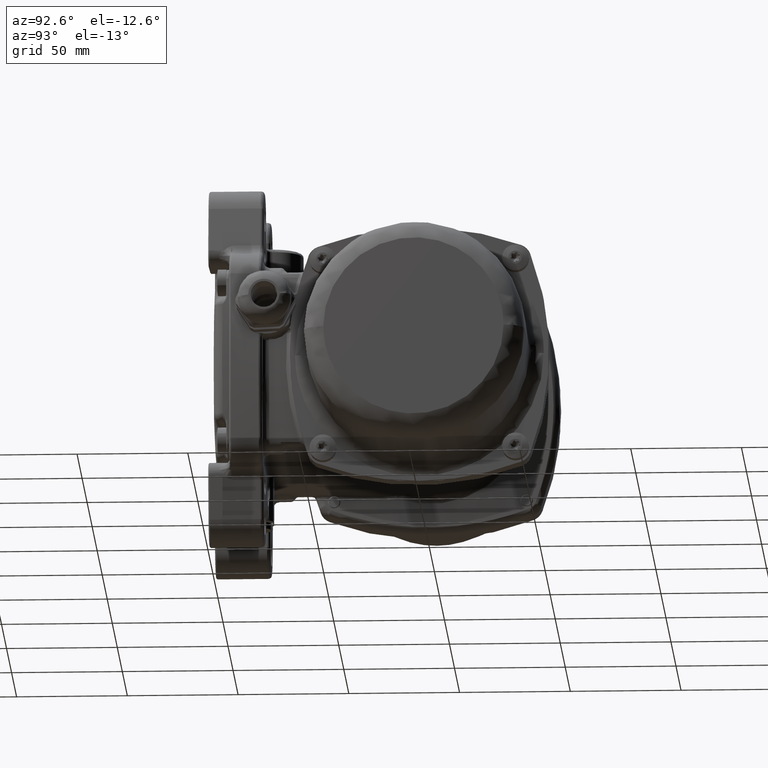
[diagram: clean part render]
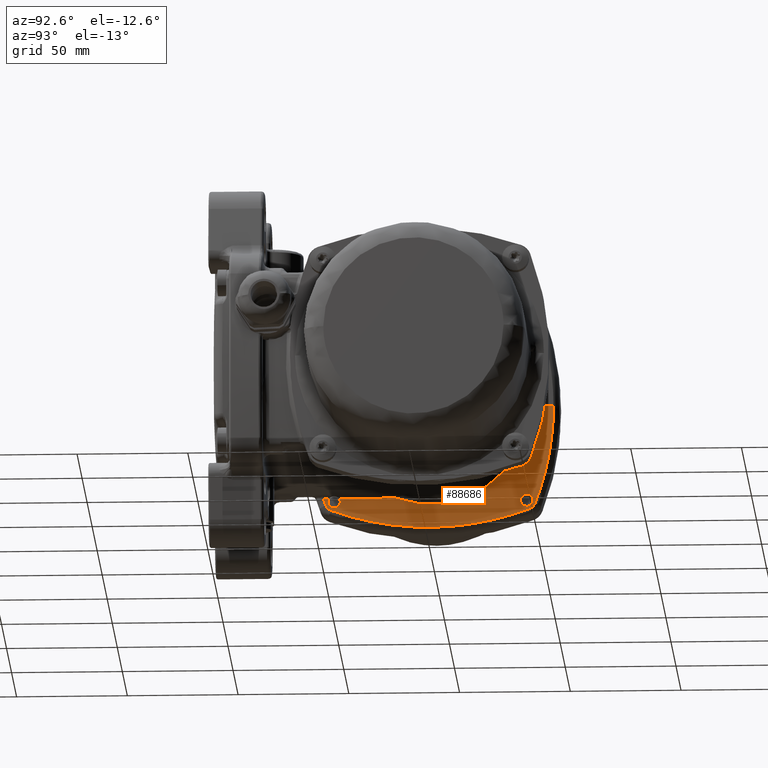
[diagram: same view with one face highlighted and labeled with its STEP entity id]
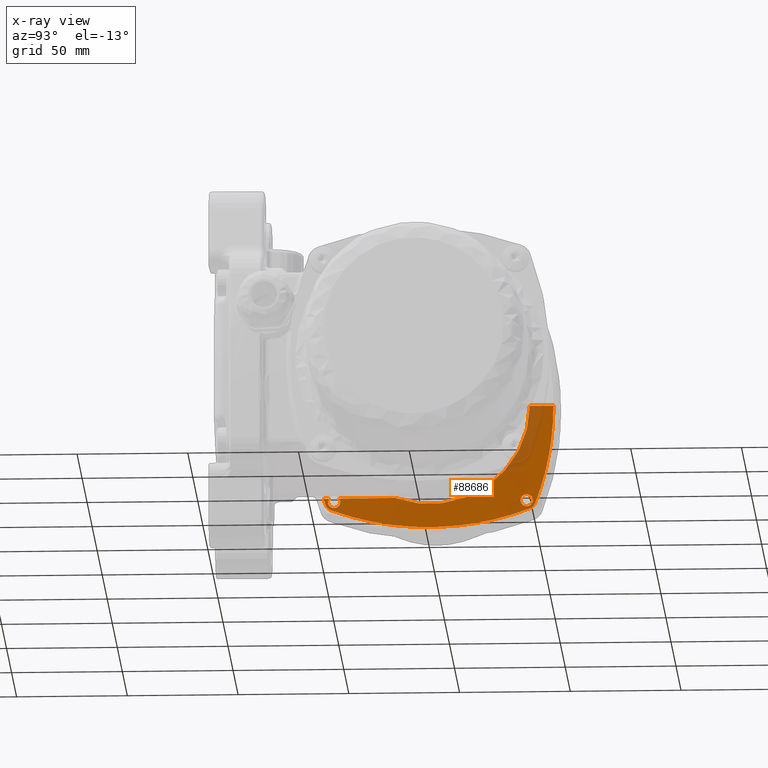
[diagram: x-ray of the same camera — body ghosted, the highlighted face saturated]
A machine part, auxiliary view. The second image highlights one B-rep face of the part: STEP entity #88686.
The next image is the same camera in x-ray: the body ghosted, the highlighted face saturated — about 12% of this face is hidden behind the body in this view.
In plain terms, the highlighted conical surface has half-angle 88.5 deg.
Its self-contained STEP definition (entity closure, byte-faithful):
#372 = VERTEX_POINT ( 'NONE', #81481 ) ;
#1443 = CARTESIAN_POINT ( 'NONE',  ( -48.62762900855690200, 139.3031295079984800, -46.27218529875842300 ) ) ;
#1446 = EDGE_CURVE ( 'NONE', #86255, #15188, #46646, .T. ) ;
#1750 = CARTESIAN_POINT ( 'NONE',  ( -48.64681165722352300, 49.94494976892646300, -44.59411082432536200 ) ) ;
#2560 = CARTESIAN_POINT ( 'NONE',  ( -48.43830390041297600, 106.6279077626287700, -55.12973412817582600 ) ) ;
#3064 = CARTESIAN_POINT ( 'NONE',  ( -48.44056499488173300, 107.4084699828988900, -55.06081526921806100 ) ) ;
#4088 = CARTESIAN_POINT ( 'NONE',  ( -48.44875311647567200, 82.10151113465937600, -54.81020981285001900 ) ) ;
#4590 = CARTESIAN_POINT ( 'NONE',  ( -48.63618316389245400, 54.78876721612306300, -48.71514515551697900 ) ) ;
#4997 = CARTESIAN_POINT ( 'NONE',  ( -48.50615807867730200, 137.2718468603175400, -41.79098118937343300 ) ) ;
#5864 = CARTESIAN_POINT ( 'NONE',  ( -48.55293929317129900, 55.07420159442777700, -44.58647484042727200 ) ) ;
#6373 = CARTESIAN_POINT ( 'NONE',  ( -48.62641241528044800, 52.76469996500049600, -46.27217468170873400 ) ) ;
#6402 = CARTESIAN_POINT ( 'NONE',  ( -48.54325975612596300, 140.2078113875984400, -40.79147399333352600 ) ) ;
#6565 = FACE_BOUND ( 'NONE', #82411, .T. ) ;
#6623 = CARTESIAN_POINT ( 'NONE',  ( -48.49020639425995000, 118.6749428014415900, -53.52083142533355400 ) ) ;
#6727 = ORIENTED_EDGE ( 'NONE', *, *, #58640, .T. ) ;
#7420 = CARTESIAN_POINT ( 'NONE',  ( -48.59507954319239800, 50.18108374586699200, -41.96464044463920800 ) ) ;
#7915 = CARTESIAN_POINT ( 'NONE',  ( -48.58522457941486300, 54.34995942818508000, -45.59500198784834200 ) ) ;
#8950 = CARTESIAN_POINT ( 'NONE',  ( -48.61628489405428900, 142.1826645582101200, -42.76341746169417500 ) ) ;
#9460 = CARTESIAN_POINT ( 'NONE',  ( -48.63422789342831700, 139.6710411937102100, -46.27224288635429900 ) ) ;
#10555 = CARTESIAN_POINT ( 'NONE',  ( -48.64527861650352500, 51.53510639498554700, -46.09803483176348500 ) ) ;
#11188 = CARTESIAN_POINT ( 'NONE',  ( -48.49258562641269100, 149.4457494622413400, -23.08158939364770000 ) ) ;
#11236 = CARTESIAN_POINT ( 'NONE',  ( -48.67673048814860000, 48.71932580558679900, -44.96641344425215400 ) ) ;
#11672 = CARTESIAN_POINT ( 'NONE',  ( -48.63092812262144800, 52.51293295702710400, -46.27221408968970500 ) ) ;
#11812 = CIRCLE ( 'NONE', #13736, 44.89529220676850200 ) ;
#12192 = CARTESIAN_POINT ( 'NONE',  ( -48.68858991597678500, 161.7019583301111800, 1.927769648262117200E-015 ) ) ;
#13023 = EDGE_CURVE ( 'NONE', #372, #132037, #11812, .T. ) ;
#13736 = AXIS2_PLACEMENT_3D ( 'NONE', #58883, #37667, #130761 ) ;
#14091 = CARTESIAN_POINT ( 'NONE',  ( -48.59507954319239800, 50.18108374586699200, -41.96464044463920800 ) ) ;
#14411 = CARTESIAN_POINT ( 'NONE',  ( -48.60046861929319600, 58.50056180584726900, -49.92821075099441700 ) ) ;
#14608 = CARTESIAN_POINT ( 'NONE',  ( -48.61883707829115800, 49.79210752997890700, -42.87950097202043100 ) ) ;
#14835 = CARTESIAN_POINT ( 'NONE',  ( -48.51567632068096700, 138.7624346919335200, -40.79273522056353600 ) ) ;
#15188 = VERTEX_POINT ( 'NONE', #57152 ) ;
#15429 = CARTESIAN_POINT ( 'NONE',  ( -48.42422976490003400, 93.59045366918346100, -55.55629560130471800 ) ) ;
#15832 = CARTESIAN_POINT ( 'NONE',  ( -48.50614209776984600, 137.7874217300453100, -41.27458232842975100 ) ) ;
#15919 = CARTESIAN_POINT ( 'NONE',  ( -48.44623761430077000, 82.80858799917344000, -54.88738804294106200 ) ) ;
#16345 = CARTESIAN_POINT ( 'NONE',  ( -48.50807187613531100, 138.0888686913056300, -41.07273112108383400 ) ) ;
#16439 = CARTESIAN_POINT ( 'NONE',  ( -48.44168201353682700, 84.22265763885982900, -55.02671947760897100 ) ) ;
#16975 = CARTESIAN_POINT ( 'NONE',  ( -48.52785619739432800, 139.4870670429726000, -40.70281949131915400 ) ) ;
#17463 = CARTESIAN_POINT ( 'NONE',  ( -48.48969006471710200, 118.5859131705044500, -53.53711148975629900 ) ) ;
#18142 = DIRECTION ( 'NONE',  ( -1.000000000000000000, 3.168350265471675000E-016, -5.280583775786129900E-017 ) ) ;
#18410 = ORIENTED_EDGE ( 'NONE', *, *, #49813, .T. ) ;
#20383 = AXIS2_PLACEMENT_3D ( 'NONE', #76446, #18142, #111634 ) ;
#20807 = CARTESIAN_POINT ( 'NONE',  ( -48.60351998420634300, 141.9902078508244500, -42.25301587385411000 ) ) ;
#20930 = EDGE_CURVE ( 'NONE', #132037, #63045, #132377, .T. ) ;
#21305 = CARTESIAN_POINT ( 'NONE',  ( -48.61213949468634600, 142.1291732997220800, -42.58801771475048500 ) ) ;
#21524 = CARTESIAN_POINT ( 'NONE',  ( -48.67673048814860000, 143.2806741944135900, -44.96641344425179900 ) ) ;
#22051 = CARTESIAN_POINT ( 'NONE',  ( -48.47050534060237900, 150.1385384378920900, -19.08633367178142100 ) ) ;
#22436 = CARTESIAN_POINT ( 'NONE',  ( -48.64858308527107100, 51.19497463374418100, -45.94395445185279000 ) ) ;
#25003 = EDGE_CURVE ( 'NONE', #50178, #147813, #145642, .T. ) ;
#25487 = CARTESIAN_POINT ( 'NONE',  ( -48.64425705615631300, 49.85676091035787000, -44.36208510151652000 ) ) ;
#26011 = CARTESIAN_POINT ( 'NONE',  ( -48.60149445840776400, 50.04347491093467000, -42.17530934177443700 ) ) ;
#26320 = CARTESIAN_POINT ( 'NONE',  ( -48.45403980006489800, 80.68702283227364100, -54.64772340011601400 ) ) ;
#26512 = CARTESIAN_POINT ( 'NONE',  ( -48.65018662722953700, 50.19081893556251100, -45.03021450540848700 ) ) ;
#26665 = B_SPLINE_CURVE_WITH_KNOTS ( 'NONE', 3,
 ( #107065, #129382, #130921, #81238, #10555, #93166, #22436, #105032, #128871, #58012, #84787, #26512, #60050, #1750, #25487, #85309, #72915, #36803, #119516, #14608, #48676, #121050, #26011, #14091 ),
 .UNSPECIFIED., .F., .F.,
 ( 4, 2, 2, 2, 2, 2, 2, 2, 2, 2, 2, 4 ),
 ( 1.472346550235315000E-016, 0.0007444221240903752500, 0.001116633186135489500, 0.001488844248180603700, 0.002233266372270832500, 0.002605477434315931400, 0.002977688496361031300, 0.003722110620451219700, 0.004466532744541409000, 0.004838743806586503700, 0.005210954868631597500, 0.005955376992721779900 ),
 .UNSPECIFIED. ) ;
#26733 = CARTESIAN_POINT ( 'NONE',  ( -48.50565020636191300, 137.6464747162710900, -41.39017843832591100 ) ) ;
#26817 = CARTESIAN_POINT ( 'NONE',  ( -48.46591968701479700, 114.0603874687885600, -54.28051431329768700 ) ) ;
#27741 = CARTESIAN_POINT ( 'NONE',  ( -48.57072768516007200, 137.2747400936696900, -45.18801504408477100 ) ) ;
#27831 = CARTESIAN_POINT ( 'NONE',  ( -48.42641470587676600, 91.19031439595634900, -55.49010335973996200 ) ) ;
#28874 = CARTESIAN_POINT ( 'NONE',  ( -48.18506337001878800, 75.92085654290487200, -41.95222786932323800 ) ) ;
#29070 = CARTESIAN_POINT ( 'NONE',  ( -48.51561623482324100, 55.20167508683054100, -42.75381245042098000 ) ) ;
#29399 = CARTESIAN_POINT ( 'NONE',  ( -48.28348237108101400, 68.37802341235914100, -41.95619176721642400 ) ) ;
#29602 = CARTESIAN_POINT ( 'NONE',  ( -48.52127625278585300, 55.27594653604840900, -43.12232675285000000 ) ) ;
#30129 = CARTESIAN_POINT ( 'NONE',  ( -48.57546138980788400, 141.3278302757541400, -41.38970427303685500 ) ) ;
#30346 = CARTESIAN_POINT ( 'NONE',  ( -48.67673048814860000, 140.9664134442522000, -47.28067419441320100 ) ) ;
#30838 = CARTESIAN_POINT ( 'NONE',  ( -48.63600904597552700, 137.1951073221153500, -48.72130504863709900 ) ) ;
#32570 = CARTESIAN_POINT ( 'NONE',  ( -48.64526746811200300, 47.61645026810910500, -41.96569640465640600 ) ) ;
#32875 = CARTESIAN_POINT ( 'NONE',  ( -48.42931576036984600, 151.4041256684127200, -7.676510067990929700 ) ) ;
#32953 = VERTEX_POINT ( 'NONE', #11672 ) ;
#33252 = VERTEX_POINT ( 'NONE', #107046 ) ;
#34898 = CARTESIAN_POINT ( 'NONE',  ( -48.60045811018669300, 145.9285675620554600, -37.49834664680369700 ) ) ;
#35930 = DIRECTION ( 'NONE',  ( -0.02617694830787259000, 0.9996573249755572600, -1.694191700728362000E-018 ) ) ;
#36018 = CARTESIAN_POINT ( 'NONE',  ( -48.60350922166595200, 138.2525628649222000, -45.99006677054671100 ) ) ;
#36518 = CARTESIAN_POINT ( 'NONE',  ( -48.63092812262139800, 139.4870670429724000, -46.27221408969069900 ) ) ;
#36803 = CARTESIAN_POINT ( 'NONE',  ( -48.62656094615832100, 49.73504822487320400, -43.25103451079962700 ) ) ;
#37667 = DIRECTION ( 'NONE',  ( -1.000000000000000000, 3.061616997868385100E-016, -9.552334769310169100E-035 ) ) ;
#37901 = EDGE_CURVE ( 'NONE', #15188, #86255, #107430, .T. ) ;
#38656 = CARTESIAN_POINT ( 'NONE',  ( -48.50098628109472500, 71.52714762351587300, -53.17980152314704900 ) ) ;
#39167 = CARTESIAN_POINT ( 'NONE',  ( -48.49161395754609300, 73.08371723178966300, -53.47642620216312500 ) ) ;
#39673 = CARTESIAN_POINT ( 'NONE',  ( -48.43103767183183800, 103.6365098093241000, -55.35029223096633900 ) ) ;
#40178 = CARTESIAN_POINT ( 'NONE',  ( -48.42381961465945700, 94.31083023378508300, -55.56875437001158200 ) ) ;
#40514 = CARTESIAN_POINT ( 'NONE',  ( -48.64526746811200300, 47.61645026810910500, -41.96569640465640600 ) ) ;
#40695 = CARTESIAN_POINT ( 'NONE',  ( -48.49073135269885900, 118.7652331964884200, -53.50427515972666000 ) ) ;
#40961 = CARTESIAN_POINT ( 'NONE',  ( -48.56559793769466900, 54.84372829555705700, -45.03093701760676000 ) ) ;
#41277 = CARTESIAN_POINT ( 'NONE',  ( -48.29039233275856400, 67.90256288284783200, -41.95643428321633900 ) ) ;
#41474 = CARTESIAN_POINT ( 'NONE',  ( -48.57205867250195300, 54.69777401376750700, -45.23174054778677100 ) ) ;
#41668 = CONICAL_SURFACE ( 'NONE', #20383, 65.70195833011119600, 1.544616388014981900 ) ;
#41726 = CARTESIAN_POINT ( 'NONE',  ( -48.48849226702468900, 118.3782233534909400, -53.57485778980993300 ) ) ;
#42302 = CARTESIAN_POINT ( 'NONE',  ( -48.23710311527579400, 71.72909067433988600, -41.95430703009887500 ) ) ;
#42519 = CARTESIAN_POINT ( 'NONE',  ( -48.68533256887423700, 141.9669403819579500, -46.77372710893286700 ) ) ;
#42690 = ORIENTED_EDGE ( 'NONE', *, *, #65248, .F. ) ;
#44040 = CARTESIAN_POINT ( 'NONE',  ( -48.63415298688256900, 142.2723676687289800, -43.66673567386005300 ) ) ;
#45268 = CARTESIAN_POINT ( 'NONE',  ( -48.53989690606547900, 147.9297829466244100, -30.15593983137461400 ) ) ;
#45779 = CARTESIAN_POINT ( 'NONE',  ( -48.44351125326906500, 150.9708249641980400, -12.36180318454929200 ) ) ;
#46074 = CARTESIAN_POINT ( 'NONE',  ( -48.62814184970648100, 48.48188055228369800, -41.96534838723494000 ) ) ;
#46156 = ORIENTED_EDGE ( 'NONE', *, *, #55174, .T. ) ;
#46291 = CARTESIAN_POINT ( 'NONE',  ( -48.44130657344000900, 151.0381829602409300, -11.65464065648246700 ) ) ;
#46412 = CARTESIAN_POINT ( 'NONE',  ( -48.59507954319239800, 50.18108374586699200, -41.96464044463920800 ) ) ;
#46646 = B_SPLINE_CURVE_WITH_KNOTS ( 'NONE', 3,
 ( #65213, #78089, #88415, #6402, #147953, #88932, #100895, #101402, #30129, #80615, #102904, #67740, #20807, #21305, #8950, #138618, #126756, #44040, #92537, #139629, #127270, #55394, #56389, #80121, #79617, #115356, #91512, #67260, #114318, #101900, #68760, #138099, #9460, #103420 ),
 .UNSPECIFIED., .F., .F.,
 ( 4, 2, 2, 2, 2, 2, 2, 2, 2, 2, 2, 2, 2, 2, 2, 2, 4 ),
 ( 0.008705055358834073300, 0.009249229623956731200, 0.009793403889079389100, 0.01033757815420204900, 0.01088175241932470700, 0.01142592668444736500, 0.01197010094957002400, 0.01251427521469268200, 0.01305844947981534000, 0.01360262374493799800, 0.01414679801006065600, 0.01469097227518331500, 0.01523514654030597300, 0.01577932080542863300, 0.01632349507055129100, 0.01686766933567394900, 0.01741184360079660700 ),
 .UNSPECIFIED. ) ;
#48391 = CARTESIAN_POINT ( 'NONE',  ( -48.62405180677249900, 139.1222743749487400, -46.25411164002336800 ) ) ;
#48470 = ORIENTED_EDGE ( 'NONE', *, *, #140221, .T. ) ;
#48676 = CARTESIAN_POINT ( 'NONE',  ( -48.61611971841596600, 49.82190880672931900, -42.75898167906849100 ) ) ;
#49543 = CARTESIAN_POINT ( 'NONE',  ( -48.50709058855340300, 54.84254554901249900, -41.96262620557354900 ) ) ;
#49813 = EDGE_CURVE ( 'NONE', #33252, #64623, #81526, .T. ) ;
#49998 = CARTESIAN_POINT ( 'NONE',  ( -48.43950290284464400, 107.0474992313634300, -55.09320482652838500 ) ) ;
#50178 = VERTEX_POINT ( 'NONE', #40514 ) ;
#51025 = CARTESIAN_POINT ( 'NONE',  ( -48.42532265655057000, 92.15007284327299400, -55.52315384787748800 ) ) ;
#51439 = CARTESIAN_POINT ( 'NONE',  ( -48.58977681925635000, 137.7900758606990600, -45.70254833740183600 ) ) ;
#51519 = CARTESIAN_POINT ( 'NONE',  ( -48.43602390232263100, 105.7893122790249500, -55.19909432897539900 ) ) ;
#52038 = CARTESIAN_POINT ( 'NONE',  ( -48.55414597187974800, 64.01325966109479300, -51.46447427771148100 ) ) ;
#52334 = CARTESIAN_POINT ( 'NONE',  ( -48.68247276257214700, 143.0774782353507000, -45.49826860208312200 ) ) ;
#53141 = CARTESIAN_POINT ( 'NONE',  ( -48.22347445411580200, 72.78415082001357900, -41.95371233094988400 ) ) ;
#53341 = CARTESIAN_POINT ( 'NONE',  ( -48.60414419155529200, 53.72153317487074300, -45.99915943124099700 ) ) ;
#54176 = CARTESIAN_POINT ( 'NONE',  ( -48.29563401791799700, 67.54501992050883500, -41.95661008889093300 ) ) ;
#54859 = CARTESIAN_POINT ( 'NONE',  ( -48.51095461859507900, 55.08712980234587100, -42.39759408244737000 ) ) ;
#55174 = EDGE_CURVE ( 'NONE', #32953, #74885, #26665, .T. ) ;
#55394 = CARTESIAN_POINT ( 'NONE',  ( -48.64790767316228700, 141.9916413123931400, -44.71924168676713400 ) ) ;
#56116 = CARTESIAN_POINT ( 'NONE',  ( -48.50528578576666000, 149.0429782662556600, -25.15060132673204400 ) ) ;
#56389 = CARTESIAN_POINT ( 'NONE',  ( -48.64925577497034200, 141.9044797167650800, -44.88241327112045600 ) ) ;
#56607 = CARTESIAN_POINT ( 'NONE',  ( -48.44622169376032200, 150.8878755878052100, -13.18678543052212900 ) ) ;
#57117 = CARTESIAN_POINT ( 'NONE',  ( -48.44873674759513400, 150.8107119017509800, -13.89396739012315700 ) ) ;
#57152 = CARTESIAN_POINT ( 'NONE',  ( -48.63092812262139800, 139.4870670429724000, -46.27221408969069900 ) ) ;
#57633 = CARTESIAN_POINT ( 'NONE',  ( -48.49375829412694800, 149.4087035479473100, -23.27984208007462600 ) ) ;
#58012 = CARTESIAN_POINT ( 'NONE',  ( -48.65141633496197900, 50.41774699900180000, -45.32653729758463600 ) ) ;
#58130 = CARTESIAN_POINT ( 'NONE',  ( -48.52035890308399500, 148.5608121325473100, -27.42248480154441700 ) ) ;
#58640 = EDGE_CURVE ( 'NONE', #64623, #86248, #66785, .T. ) ;
#58883 = CARTESIAN_POINT ( 'NONE',  ( -48.14374818875469900, 96.00000000000000000, 1.948268851833480200E-015 ) ) ;
#59881 = ORIENTED_EDGE ( 'NONE', *, *, #75062, .T. ) ;
#60050 = CARTESIAN_POINT ( 'NONE',  ( -48.64948939624098000, 50.12318639399826700, -44.92325108184526500 ) ) ;
#60769 = EDGE_LOOP ( 'NONE', ( #42690, #99905, #124353, #135336, #46156, #48470, #107498, #59881, #18410, #6727, #150233 ) ) ;
#61336 = CARTESIAN_POINT ( 'NONE',  ( -48.42352220174845500, 95.51247340460177800, -55.57781224345021100 ) ) ;
#61859 = CARTESIAN_POINT ( 'NONE',  ( -48.44002940461243200, 107.2273905066923900, -55.07715157063961400 ) ) ;
#62291 = CARTESIAN_POINT ( 'NONE',  ( -48.52116254648952100, 139.1190766407814300, -40.72131837842857000 ) ) ;
#62381 = CARTESIAN_POINT ( 'NONE',  ( -48.44114652685490100, 84.39804614152180300, -55.04306861619298300 ) ) ;
#62889 = CARTESIAN_POINT ( 'NONE',  ( -48.50530412446968900, 70.84653400442410000, -53.04239438079903800 ) ) ;
#63045 = VERTEX_POINT ( 'NONE', #49543 ) ;
#63399 = CARTESIAN_POINT ( 'NONE',  ( -48.51416634776602900, 69.48435937081920600, -52.75953703917239300 ) ) ;
#63813 = CARTESIAN_POINT ( 'NONE',  ( -48.51340045562591300, 136.8440545111011500, -42.59315583384447700 ) ) ;
#64350 = CARTESIAN_POINT ( 'NONE',  ( -48.68533256887426600, 49.22627289106702600, -45.96694038195779800 ) ) ;
#64623 = VERTEX_POINT ( 'NONE', #113788 ) ;
#64679 = CARTESIAN_POINT ( 'NONE',  ( -48.60103905308859900, 53.83427719758016400, -45.94168941741431000 ) ) ;
#64866 = CARTESIAN_POINT ( 'NONE',  ( -48.68534163360205000, 50.03110961792037900, -46.77229601598812500 ) ) ;
#65000 = CARTESIAN_POINT ( 'NONE',  ( -48.29716304282035100, 67.44121453799608900, -41.95666001110874500 ) ) ;
#65187 = CARTESIAN_POINT ( 'NONE',  ( -48.54688314272329600, 55.16215155814934700, -44.35317386050487400 ) ) ;
#65213 = CARTESIAN_POINT ( 'NONE',  ( -48.52785619739432800, 139.4870670429726000, -40.70281949131915400 ) ) ;
#65248 = EDGE_CURVE ( 'NONE', #372, #142577, #73737, .T. ) ;
#66021 = CARTESIAN_POINT ( 'NONE',  ( -48.25878355670730000, 70.12905661953861600, -41.95522186494760300 ) ) ;
#66714 = CARTESIAN_POINT ( 'NONE',  ( -48.53020943523296900, 55.30518827464813800, -43.61790864187722900 ) ) ;
#66785 = B_SPLINE_CURVE_WITH_KNOTS ( 'NONE', 3,
 ( #112262, #136572, #42519, #111753, #52334, #76047 ),
 .UNSPECIFIED., .F., .F.,
 ( 4, 2, 4 ),
 ( 0.0000000000000000000, 0.5000000000000000000, 1.000000000000000000 ),
 .UNSPECIFIED. ) ;
#67260 = CARTESIAN_POINT ( 'NONE',  ( -48.64928005421116100, 140.8856686302292500, -45.90259334285558900 ) ) ;
#67657 = CARTESIAN_POINT ( 'NONE',  ( -48.67673048814860000, 48.71932580558679900, -44.96641344425215400 ) ) ;
#67740 = CARTESIAN_POINT ( 'NONE',  ( -48.59898149515152000, 141.9036526306680300, -42.09095906387610600 ) ) ;
#67961 = CARTESIAN_POINT ( 'NONE',  ( -48.45788753688979300, 150.5291100572976000, -16.25224654144011200 ) ) ;
#68463 = CARTESIAN_POINT ( 'NONE',  ( -48.50096779369343400, 149.1803885520342300, -24.46988995560739600 ) ) ;
#68760 = CARTESIAN_POINT ( 'NONE',  ( -48.64228092008862300, 140.2119033069317300, -46.18248885523011900 ) ) ;
#69482 = CARTESIAN_POINT ( 'NONE',  ( -48.51414837338197800, 148.7601125112665300, -26.51297147403625200 ) ) ;
#72915 = CARTESIAN_POINT ( 'NONE',  ( -48.63353664763576500, 49.72001808777987000, -43.62450814502376800 ) ) ;
#73737 = LINE ( 'NONE', #12192, #151479 ) ;
#73742 = CARTESIAN_POINT ( 'NONE',  ( -48.67673048814860000, 51.03358655574819400, -47.28067419441350000 ) ) ;
#74672 = CARTESIAN_POINT ( 'NONE',  ( -48.50953168244303300, 138.2514738344343400, -40.98550410232140700 ) ) ;
#74885 = VERTEX_POINT ( 'NONE', #46412 ) ;
#75062 = EDGE_CURVE ( 'NONE', #147813, #33252, #115647, .T. ) ;
#75177 = CARTESIAN_POINT ( 'NONE',  ( -48.50957672531097100, 136.9832819507432200, -42.25602403042916000 ) ) ;
#75266 = CARTESIAN_POINT ( 'NONE',  ( -48.49177169667717600, 73.05682273452441700, -53.47144729208326200 ) ) ;
#75685 = CARTESIAN_POINT ( 'NONE',  ( -48.50565935695890100, 137.3868393068337900, -41.65028566392660300 ) ) ;
#75768 = CARTESIAN_POINT ( 'NONE',  ( -48.60016221399305200, 133.4676114461103400, -49.93860598022396100 ) ) ;
#75840 = CARTESIAN_POINT ( 'NONE',  ( -48.29388115011234800, 67.66429175983067500, -41.95655210054415100 ) ) ;
#76047 = CARTESIAN_POINT ( 'NONE',  ( -48.67673048814860000, 143.2806741944135900, -44.96641344425179900 ) ) ;
#76446 = CARTESIAN_POINT ( 'NONE',  ( -48.68858991597680600, 96.00000000000000000, 1.948268851833480200E-015 ) ) ;
#76735 = CARTESIAN_POINT ( 'NONE',  ( -48.68247276257218200, 50.50173139791673500, -47.07747823535070400 ) ) ;
#76861 = CARTESIAN_POINT ( 'NONE',  ( -48.50709058855340300, 54.84254554901249900, -41.96262620557354900 ) ) ;
#77046 = CARTESIAN_POINT ( 'NONE',  ( -48.62126881906049600, 53.01586170316473100, -46.23756944671818300 ) ) ;
#77298 = CARTESIAN_POINT ( 'NONE',  ( -48.47772856023468800, 116.4232947984817200, -53.91264509562748900 ) ) ;
#78089 = CARTESIAN_POINT ( 'NONE',  ( -48.53137281747502400, 139.6710372826420900, -40.70278880224063300 ) ) ;
#78561 = CARTESIAN_POINT ( 'NONE',  ( -48.50867785288419800, 54.98043645768344600, -42.17331871014097500 ) ) ;
#79524 = CARTESIAN_POINT ( 'NONE',  ( -48.65540920346155900, 47.96865773305313500, -42.96285476149380100 ) ) ;
#79617 = CARTESIAN_POINT ( 'NONE',  ( -48.65149063986002200, 141.5879379588978400, -45.32504696791761500 ) ) ;
#80121 = CARTESIAN_POINT ( 'NONE',  ( -48.65103597944736400, 141.7029746532754500, -45.18433400416152100 ) ) ;
#80328 = CARTESIAN_POINT ( 'NONE',  ( -48.49612841430992200, 149.3337503066626100, -23.67642085405173100 ) ) ;
#80615 = CARTESIAN_POINT ( 'NONE',  ( -48.58496436701315000, 141.5847440766984800, -41.64653646513370700 ) ) ;
#81238 = CARTESIAN_POINT ( 'NONE',  ( -48.64389461661848200, 51.65460334012203000, -46.13970525500055000 ) ) ;
#81481 = CARTESIAN_POINT ( 'NONE',  ( -48.14374818875468500, 140.8952922067684900, 1.963032212928319000E-015 ) ) ;
#81526 = B_SPLINE_CURVE_WITH_KNOTS ( 'NONE', 3,
 ( #73742, #4590, #14411, #52038, #109401, #86118, #63399, #62889, #38656, #133249, #133760, #109900, #99083, #75266, #39167, #146132, #132733, #108883, #26320, #4088, #15919, #144608, #87127, #16439, #121875, #62381, #98588, #110947, #27831, #51025, #15429, #40178, #122896, #61336, #144100, #120856, #98058, #110417, #39673, #122388, #51519, #2560, #49998, #61859, #121366, #3064, #85628, #97550, #26817, #145118, #77298, #113511, #123912, #41726, #17463, #6623, #111471, #40695, #136284, #135789, #75768, #30838, #30346 ),
 .UNSPECIFIED., .F., .F.,
 ( 4, 2, 2, 2, 1, 1, 1, 1, 2, 2, 2, 2, 1, 1, 1, 2, 2, 2, 2, 1, 2, 2, 2, 2, 1, 1, 1, 2, 2, 2, 2, 1, 1, 1, 1, 2, 2, 2, 4 ),
 ( 0.0000000000000000000, 0.1250000000000342500, 0.1875000000000512600, 0.2187500000000597600, 0.2343750000000640300, 0.2421875000000659200, 0.2460937500000668400, 0.2480468750000670600, 0.2490234375000673600, 0.2500000000000676700, 0.3125000000000779400, 0.3437500000000828800, 0.3593750000000853200, 0.3671875000000865400, 0.3710937500000874300, 0.3730468750000876000, 0.3750000000000878200, 0.4375000000000903200, 0.4687500000000913700, 0.4843750000000918700, 0.4921875000000918700, 0.5000000000000919300, 0.5625000000000921500, 0.5937500000000922600, 0.6093750000000921500, 0.6171875000000918200, 0.6210937500000917000, 0.6230468750000917000, 0.6250000000000915900, 0.6875000000000910400, 0.7187500000000904800, 0.7343750000000903700, 0.7421875000000907100, 0.7460937500000907100, 0.7480468750000910400, 0.7490234375000910400, 0.7500000000000909300, 0.8750000000000454100, 1.000000000000000000 ),
 .UNSPECIFIED. ) ;
#82411 = EDGE_LOOP ( 'NONE', ( #104691, #127884 ) ) ;
#82983 = CARTESIAN_POINT ( 'NONE',  ( -48.61218169383312200, 138.5896926501088700, -46.12982108938984300 ) ) ;
#84787 = CARTESIAN_POINT ( 'NONE',  ( -48.65114617550565900, 50.33793713823317300, -45.23147452272927900 ) ) ;
#85309 = CARTESIAN_POINT ( 'NONE',  ( -48.63755217318706100, 49.74305789750588500, -43.87225888634036200 ) ) ;
#85391 = EDGE_CURVE ( 'NONE', #63045, #32953, #121066, .T. ) ;
#85628 = CARTESIAN_POINT ( 'NONE',  ( -48.44638111240335100, 109.3498164563977800, -54.88333451518644800 ) ) ;
#86118 = CARTESIAN_POINT ( 'NONE',  ( -48.52037654535880100, 68.57497640039775900, -52.56024510204865400 ) ) ;
#86248 = VERTEX_POINT ( 'NONE', #96535 ) ;
#86255 = VERTEX_POINT ( 'NONE', #16975 ) ;
#86538 = CARTESIAN_POINT ( 'NONE',  ( -48.56125163239044400, 137.0712104262444500, -44.88377420331531900 ) ) ;
#87040 = CARTESIAN_POINT ( 'NONE',  ( -48.53516465964710100, 136.7207094755329100, -43.85206699772320600 ) ) ;
#87127 = CARTESIAN_POINT ( 'NONE',  ( -48.44222699433012000, 84.04589031981417700, -55.01007517796381300 ) ) ;
#87547 = CARTESIAN_POINT ( 'NONE',  ( -48.51334566507511400, 138.5888889617022500, -40.84548244461411300 ) ) ;
#88415 = CARTESIAN_POINT ( 'NONE',  ( -48.53516385396551400, 139.8519295448960800, -40.72081032753931900 ) ) ;
#88567 = CARTESIAN_POINT ( 'NONE',  ( -48.67673048814860000, 51.03358655574819400, -47.28067419441350000 ) ) ;
#88686 = ADVANCED_FACE ( 'NONE', ( #113711, #6565 ), #41668, .T. ) ;
#88904 = CARTESIAN_POINT ( 'NONE',  ( -48.63092812262144800, 52.51293295702710400, -46.27221408968970500 ) ) ;
#88932 = CARTESIAN_POINT ( 'NONE',  ( -48.55659365271606000, 140.7218653817757600, -40.98466569319013800 ) ) ;
#89730 = CARTESIAN_POINT ( 'NONE',  ( -48.35613999968968100, 63.44288317640466300, -41.95856959582082600 ) ) ;
#91512 = CARTESIAN_POINT ( 'NONE',  ( -48.65104779715909400, 141.1872183799436300, -45.70075741744229000 ) ) ;
#92230 = CARTESIAN_POINT ( 'NONE',  ( -48.49175302257897600, 149.4720367461444000, -22.93999470084144200 ) ) ;
#92537 = CARTESIAN_POINT ( 'NONE',  ( -48.63712844127272200, 142.2543600725315100, -43.85120062202714300 ) ) ;
#93166 = CARTESIAN_POINT ( 'NONE',  ( -48.64761739501237500, 51.30564398252369800, -46.00020544106884300 ) ) ;
#96535 = CARTESIAN_POINT ( 'NONE',  ( -48.67673048814860000, 143.2806741944135900, -44.96641344425179900 ) ) ;
#96954 = CARTESIAN_POINT ( 'NONE',  ( -48.52434027721499600, 139.3031334182884700, -40.70285017428972200 ) ) ;
#97461 = CARTESIAN_POINT ( 'NONE',  ( -48.57547237332904900, 137.3899826381346300, -45.32814409920014500 ) ) ;
#97550 = CARTESIAN_POINT ( 'NONE',  ( -48.45338070788226000, 111.2313483835167600, -54.66854994926808300 ) ) ;
#98058 = CARTESIAN_POINT ( 'NONE',  ( -48.42493049968500400, 99.81598687893549000, -55.53500127720122500 ) ) ;
#98588 = CARTESIAN_POINT ( 'NONE',  ( -48.43514604654049500, 86.38818858538589000, -55.22619596602897500 ) ) ;
#98995 = CARTESIAN_POINT ( 'NONE',  ( -48.52785619739432800, 139.4870670429726000, -40.70281949131915400 ) ) ;
#99083 = CARTESIAN_POINT ( 'NONE',  ( -48.49210437976795900, 73.00019401617485900, -53.46094466977639600 ) ) ;
#99905 = ORIENTED_EDGE ( 'NONE', *, *, #13023, .T. ) ;
#100183 = CARTESIAN_POINT ( 'NONE',  ( -48.26621661213305700, 69.59281019048044900, -41.95552942278866500 ) ) ;
#100682 = CARTESIAN_POINT ( 'NONE',  ( -48.29638705964797700, 67.49387410272846900, -41.95663473754622400 ) ) ;
#100895 = CARTESIAN_POINT ( 'NONE',  ( -48.56119496111527000, 140.8818062709803500, -41.07015524030946800 ) ) ;
#101402 = CARTESIAN_POINT ( 'NONE',  ( -48.57061380930402100, 141.1845046785753400, -41.27213512129827000 ) ) ;
#101900 = CARTESIAN_POINT ( 'NONE',  ( -48.64443156117037900, 140.3854966616865500, -46.12977364889017200 ) ) ;
#102717 = CARTESIAN_POINT ( 'NONE',  ( -48.14374818875469900, 80.00955924692600300, -41.95107944801375100 ) ) ;
#102904 = CARTESIAN_POINT ( 'NONE',  ( -48.58966814534759500, 141.7000336529466200, -41.78667606036837900 ) ) ;
#103420 = CARTESIAN_POINT ( 'NONE',  ( -48.63092812262139800, 139.4870670429724000, -46.27221408969069900 ) ) ;
#103632 = CARTESIAN_POINT ( 'NONE',  ( -48.44221198026912800, 151.0105337817586000, -11.94929857505688800 ) ) ;
#104151 = CARTESIAN_POINT ( 'NONE',  ( -48.49208571004454900, 149.4615341135816800, -22.99663157805631600 ) ) ;
#104691 = ORIENTED_EDGE ( 'NONE', *, *, #37901, .T. ) ;
#105032 = CARTESIAN_POINT ( 'NONE',  ( -48.65088085732566000, 50.87497827809975300, -45.75350670169083100 ) ) ;
#105160 = CARTESIAN_POINT ( 'NONE',  ( -48.48028125687655200, 149.8340637840800600, -20.98024677757761600 ) ) ;
#106284 = CARTESIAN_POINT ( 'NONE',  ( -48.61635267113292300, 138.7664758038224600, -46.18335773705085500 ) ) ;
#107046 = CARTESIAN_POINT ( 'NONE',  ( -48.67673048814860000, 51.03358655574819400, -47.28067419441350000 ) ) ;
#107065 = CARTESIAN_POINT ( 'NONE',  ( -48.63092812262144800, 52.51293295702710400, -46.27221408968970500 ) ) ;
#107430 = B_SPLINE_CURVE_WITH_KNOTS ( 'NONE', 3,
 ( #36518, #1443, #48391, #106284, #82983, #36018, #144524, #51439, #133158, #97461, #27741, #86538, #132645, #145030, #134674, #87040, #146040, #109822, #146556, #134160, #63813, #75177, #145515, #4997, #75685, #26733, #15832, #16345, #74672, #87547, #14835, #62291, #96954, #98995 ),
 .UNSPECIFIED., .F., .F.,
 ( 4, 2, 2, 2, 2, 2, 2, 2, 2, 2, 2, 2, 2, 2, 2, 2, 4 ),
 ( 0.0000000000000000000, 0.0005440659599271295800, 0.001088131919854259200, 0.001632197879781388700, 0.002176263839708518300, 0.002720329799635648100, 0.003264395759562777500, 0.003808461719489906900, 0.004352527679417036700, 0.004896593639344166500, 0.005440659599271296200, 0.005984725559198425200, 0.006528791519125555000, 0.007072857479052684800, 0.007616923438979813700, 0.008160989398906944400, 0.008705055358834073300 ),
 .UNSPECIFIED. ) ;
#107498 = ORIENTED_EDGE ( 'NONE', *, *, #25003, .T. ) ;
#108185 = B_SPLINE_CURVE_WITH_KNOTS ( 'NONE', 3,
 ( #21524, #127481, #34898, #150684, #45268, #58130, #69482, #56116, #68463, #80328, #57633, #11188, #104151, #92230, #140348, #105160, #22051, #67961, #140876, #57117, #56607, #45779, #103632, #139842, #46291, #116601, #32875, #117613, #127989 ),
 .UNSPECIFIED., .F., .F.,
 ( 4, 2, 2, 2, 1, 1, 1, 1, 2, 2, 2, 2, 1, 1, 1, 2, 2, 4 ),
 ( 0.0000000000000000000, 0.2500000000000080500, 0.3750000000000121000, 0.4375000000000138800, 0.4687500000000147700, 0.4843750000000151000, 0.4921875000000151000, 0.4960937500000150400, 0.4980468750000151500, 0.5000000000000152100, 0.6250000000000138800, 0.6875000000000131000, 0.7187500000000126600, 0.7343750000000124300, 0.7421875000000122100, 0.7460937500000119900, 0.7500000000000117700, 1.000000000000000000 ),
 .UNSPECIFIED. ) ;
#108883 = CARTESIAN_POINT ( 'NONE',  ( -48.45790516144369100, 79.74358155864561600, -54.52856626454331500 ) ) ;
#109401 = CARTESIAN_POINT ( 'NONE',  ( -48.53991328432284300, 65.84191313429607800, -51.92925001226081600 ) ) ;
#109822 = CARTESIAN_POINT ( 'NONE',  ( -48.52443590867466800, 136.7026678894726500, -43.30831158149425200 ) ) ;
#109900 = CARTESIAN_POINT ( 'NONE',  ( -48.49260428931256000, 72.91524843823145800, -53.44516004199883200 ) ) ;
#110417 = CARTESIAN_POINT ( 'NONE',  ( -48.42924114902848500, 102.6811029176416100, -55.40461628704297000 ) ) ;
#110947 = CARTESIAN_POINT ( 'NONE',  ( -48.43078121853295000, 88.30994104714270100, -55.35801777070831500 ) ) ;
#111471 = CARTESIAN_POINT ( 'NONE',  ( -48.49055127788287200, 118.7343003005369900, -53.50995511432132900 ) ) ;
#111536 = CARTESIAN_POINT ( 'NONE',  ( -48.27767555769454300, 68.78373608196373800, -41.95597381409707800 ) ) ;
#111634 = DIRECTION ( 'NONE',  ( 3.168350265471676900E-016, 1.000000000000000000, -3.120029309989107700E-019 ) ) ;
#111723 = CARTESIAN_POINT ( 'NONE',  ( -48.51739453404313500, 55.23221717686347200, -42.87667027058696300 ) ) ;
#111753 = CARTESIAN_POINT ( 'NONE',  ( -48.68534163360201500, 142.7722960159881000, -45.96889038207944400 ) ) ;
#112233 = CARTESIAN_POINT ( 'NONE',  ( -48.59165800071508600, 54.15518080262243900, -45.74987036276210300 ) ) ;
#112262 = CARTESIAN_POINT ( 'NONE',  ( -48.67673048814860000, 140.9664134442522000, -47.28067419441320100 ) ) ;
#113511 = CARTESIAN_POINT ( 'NONE',  ( -48.48150067561600500, 117.1333313520025100, -53.79463609922788700 ) ) ;
#113711 = FACE_OUTER_BOUND ( 'NONE', #60769, .T. ) ;
#113788 = CARTESIAN_POINT ( 'NONE',  ( -48.67673048814860000, 140.9664134442522000, -47.28067419441320100 ) ) ;
#114315 = CARTESIAN_POINT ( 'NONE',  ( -48.61142308959286100, 49.33669924101977200, -41.96499600895793200 ) ) ;
#114318 = CARTESIAN_POINT ( 'NONE',  ( -48.64794179550918300, 140.7229940378022700, -45.98981135534781800 ) ) ;
#115356 = CARTESIAN_POINT ( 'NONE',  ( -48.65149753422706200, 141.3281898047396800, -45.58518432309532600 ) ) ;
#115647 = B_SPLINE_CURVE_WITH_KNOTS ( 'NONE', 3,
 ( #122326, #135211, #64350, #64866, #76735, #88567 ),
 .UNSPECIFIED., .F., .F.,
 ( 4, 2, 4 ),
 ( 0.0000000000000000000, 0.5000000000000000000, 1.000000000000000000 ),
 .UNSPECIFIED. ) ;
#116601 = CARTESIAN_POINT ( 'NONE',  ( -48.44113179051204600, 151.0435184128399200, -11.59709037268927800 ) ) ;
#117613 = CARTESIAN_POINT ( 'NONE',  ( -48.42349863783830000, 151.5785308449235600, -3.848994671926251300 ) ) ;
#119516 = CARTESIAN_POINT ( 'NONE',  ( -48.62405367634769200, 49.74862971630757600, -43.12525396132223700 ) ) ;
#120856 = CARTESIAN_POINT ( 'NONE',  ( -48.42349529221148400, 97.90738537523547800, -55.57862841413764000 ) ) ;
#121050 = CARTESIAN_POINT ( 'NONE',  ( -48.60764084649704800, 49.93509043915408100, -42.40437585617021200 ) ) ;
#121066 = B_SPLINE_CURVE_WITH_KNOTS ( 'NONE', 3,
 ( #125712, #78561, #54859, #29070, #111723, #29602, #137575, #66714, #147414, #149443, #65187, #5864, #124692, #40961, #41474, #7915, #112233, #64679, #53341, #136050, #147923, #77046, #6373, #88904 ),
 .UNSPECIFIED., .F., .F.,
 ( 4, 2, 2, 2, 2, 2, 2, 2, 2, 2, 2, 4 ),
 ( -0.005957623109212060000, -0.005212920220560506700, -0.004840568776234739600, -0.004468217331908973400, -0.003723514443257460900, -0.003351162998931706900, -0.002978811554605952800, -0.002234108665954426400, -0.001489405777302900100, -0.001117054332977141700, -0.0007447028886513832500, 1.474514954580286000E-016 ),
 .UNSPECIFIED. ) ;
#121366 = CARTESIAN_POINT ( 'NONE',  ( -48.44038321547603200, 107.3473331478688400, -55.06636080794844200 ) ) ;
#121875 = CARTESIAN_POINT ( 'NONE',  ( -48.44132135633341100, 84.34050420808242200, -55.03773168959278200 ) ) ;
#122326 = CARTESIAN_POINT ( 'NONE',  ( -48.67673048814860000, 48.71932580558679900, -44.96641344425215400 ) ) ;
#122388 = CARTESIAN_POINT ( 'NONE',  ( -48.43427191557014300, 105.0714130583501200, -55.25225454283215500 ) ) ;
#122896 = CARTESIAN_POINT ( 'NONE',  ( -48.42361390779591800, 95.03173009171494800, -55.57501824070669000 ) ) ;
#123912 = CARTESIAN_POINT ( 'NONE',  ( -48.48612455660357800, 117.9630249724767500, -53.64939067963640400 ) ) ;
#123981 = CARTESIAN_POINT ( 'NONE',  ( -48.16275584646475500, 77.97366456901966100, -41.95187643637422800 ) ) ;
#124353 = ORIENTED_EDGE ( 'NONE', *, *, #20930, .T. ) ;
#124692 = CARTESIAN_POINT ( 'NONE',  ( -48.55609126889143600, 55.02168223492796500, -44.70162533559595600 ) ) ;
#125712 = CARTESIAN_POINT ( 'NONE',  ( -48.50709058855340300, 54.84254554901249900, -41.96262620557354900 ) ) ;
#125917 = EDGE_CURVE ( 'NONE', #86248, #142577, #108185, .T. ) ;
#126756 = CARTESIAN_POINT ( 'NONE',  ( -48.62763385520862900, 142.2720585619496200, -43.30353031891116400 ) ) ;
#127270 = CARTESIAN_POINT ( 'NONE',  ( -48.64439055934298800, 142.1309289386408100, -44.38203627213032800 ) ) ;
#127481 = CARTESIAN_POINT ( 'NONE',  ( -48.63617719549982600, 144.7153563170867600, -41.21068002307329400 ) ) ;
#127884 = ORIENTED_EDGE ( 'NONE', *, *, #1446, .T. ) ;
#127989 = CARTESIAN_POINT ( 'NONE',  ( -48.42349863784630800, 151.5785308450724900, -3.326770708299935100E-012 ) ) ;
#128725 = B_SPLINE_CURVE_WITH_KNOTS ( 'NONE', 3,
 ( #7420, #114315, #46074, #129796 ),
 .UNSPECIFIED., .F., .F.,
 ( 4, 4 ),
 ( 0.0000000000000000000, 1.000000000000000000 ),
 .UNSPECIFIED. ) ;
#128871 = CARTESIAN_POINT ( 'NONE',  ( -48.65160628277187300, 50.67570772560923600, -45.59522087181198900 ) ) ;
#129382 = CARTESIAN_POINT ( 'NONE',  ( -48.63544212747071800, 52.26126086912844200, -46.27225348281324800 ) ) ;
#129796 = CARTESIAN_POINT ( 'NONE',  ( -48.64526746811200300, 47.61645026810910500, -41.96569640465640600 ) ) ;
#130761 = DIRECTION ( 'NONE',  ( -3.091145446586984200E-016, -1.000000000000000000, 3.120029309989083700E-019 ) ) ;
#130921 = CARTESIAN_POINT ( 'NONE',  ( -48.63923540381432500, 52.01527770518771400, -46.23878766981907500 ) ) ;
#132037 = VERTEX_POINT ( 'NONE', #102717 ) ;
#132377 = B_SPLINE_CURVE_WITH_KNOTS ( 'NONE', 3,
 ( #146718, #123981, #28874, #53141, #42302, #66021, #100183, #111536, #29399, #41277, #75840, #54176, #100682, #135854, #65000, #89730, #147739, #76861 ),
 .UNSPECIFIED., .F., .F.,
 ( 4, 2, 2, 2, 1, 1, 1, 1, 2, 2, 4 ),
 ( 0.0000000000000000000, 0.2499999999999652500, 0.3749999999999487100, 0.4374999999999412100, 0.4687499999999382700, 0.4843749999999368300, 0.4921874999999361600, 0.4960937499999357700, 0.4980468749999356100, 0.4999999999999353900, 1.000000000000000000 ),
 .UNSPECIFIED. ) ;
#132645 = CARTESIAN_POINT ( 'NONE',  ( -48.55659158145658000, 136.9846893483334300, -44.72173574235051100 ) ) ;
#132733 = CARTESIAN_POINT ( 'NONE',  ( -48.47052396253786800, 76.90991347282620400, -54.13795910723133900 ) ) ;
#133158 = CARTESIAN_POINT ( 'NONE',  ( -48.58497346602722900, 137.6468008997342200, -45.58497315058614400 ) ) ;
#133249 = CARTESIAN_POINT ( 'NONE',  ( -48.49614701663537600, 72.32050261193472800, -53.33316145235747300 ) ) ;
#133760 = CARTESIAN_POINT ( 'NONE',  ( -48.49377693927522900, 72.71702430192812000, -53.40811423995122500 ) ) ;
#134160 = CARTESIAN_POINT ( 'NONE',  ( -48.51573677999729000, 136.7915670934059400, -42.76673965741248700 ) ) ;
#134674 = CARTESIAN_POINT ( 'NONE',  ( -48.54334466920173000, 136.7923241632433100, -44.21144090781841400 ) ) ;
#135211 = CARTESIAN_POINT ( 'NONE',  ( -48.68246370389603300, 48.92220073986515400, -45.49742907934388100 ) ) ;
#135336 = ORIENTED_EDGE ( 'NONE', *, *, #85391, .T. ) ;
#135789 = CARTESIAN_POINT ( 'NONE',  ( -48.53821777040930400, 126.0865549496350900, -51.99243955230716100 ) ) ;
#135854 = CARTESIAN_POINT ( 'NONE',  ( -48.29688949028363300, 67.45977036391019500, -41.95665112407493100 ) ) ;
#136050 = CARTESIAN_POINT ( 'NONE',  ( -48.61010555160152800, 53.49197102795810100, -46.09725800855484600 ) ) ;
#136284 = CARTESIAN_POINT ( 'NONE',  ( -48.51212015880805200, 122.4328627425513600, -52.82950547699201100 ) ) ;
#136572 = CARTESIAN_POINT ( 'NONE',  ( -48.68246370389599100, 141.4974290793440700, -47.07779926013474600 ) ) ;
#137069 = CARTESIAN_POINT ( 'NONE',  ( -48.42349863784630800, 151.5785308450724900, -3.326770708299935100E-012 ) ) ;
#137575 = CARTESIAN_POINT ( 'NONE',  ( -48.52338615371741800, 55.28944288792742900, -43.24576860931717400 ) ) ;
#138099 = CARTESIAN_POINT ( 'NONE',  ( -48.63718944948058700, 139.8551503705472200, -46.25382570792280000 ) ) ;
#138536 = CARTESIAN_POINT ( 'NONE',  ( -48.66589687248875200, 48.33605822616429000, -43.96308829650559600 ) ) ;
#138618 = CARTESIAN_POINT ( 'NONE',  ( -48.62406598773439700, 142.2543117958189500, -43.12285639760818200 ) ) ;
#139629 = CARTESIAN_POINT ( 'NONE',  ( -48.64223571216794500, 142.1834360881466100, -44.20841732164936400 ) ) ;
#139842 = CARTESIAN_POINT ( 'NONE',  ( -48.44166713767892700, 151.0271736959206800, -11.77250484109147700 ) ) ;
#140221 = EDGE_CURVE ( 'NONE', #74885, #50178, #128725, .T. ) ;
#140348 = CARTESIAN_POINT ( 'NONE',  ( -48.49159528221146300, 149.4770156345660200, -22.91309645874350300 ) ) ;
#140876 = CARTESIAN_POINT ( 'NONE',  ( -48.45402261410206500, 150.6482523166151600, -15.30866563507199500 ) ) ;
#142577 = VERTEX_POINT ( 'NONE', #137069 ) ;
#144100 = CARTESIAN_POINT ( 'NONE',  ( -48.42349906240357200, 95.75420285721476400, -55.57851845689857800 ) ) ;
#144524 = CARTESIAN_POINT ( 'NONE',  ( -48.59902921082849000, 138.0926713473728300, -45.90455474745874700 ) ) ;
#144608 = CARTESIAN_POINT ( 'NONE',  ( -48.44352658109789900, 83.63344729003169700, -54.97035637918443000 ) ) ;
#145030 = CARTESIAN_POINT ( 'NONE',  ( -48.54767129429512800, 136.8457871270910000, -44.38679356299435600 ) ) ;
#145118 = CARTESIAN_POINT ( 'NONE',  ( -48.47043927771133600, 115.0045142767383200, -54.14016284292274200 ) ) ;
#145515 = CARTESIAN_POINT ( 'NONE',  ( -48.50810445544064500, 137.0704142719557100, -42.09286775886511800 ) ) ;
#145642 = B_SPLINE_CURVE_WITH_KNOTS ( 'NONE', 3,
 ( #32570, #79524, #138536, #67657 ),
 .UNSPECIFIED., .F., .F.,
 ( 4, 4 ),
 ( 5.169656379306339500E-008, 1.000000000000000000 ),
 .UNSPECIFIED. ) ;
#146040 = CARTESIAN_POINT ( 'NONE',  ( -48.53138374464609900, 136.7029729814795500, -43.67143095359806200 ) ) ;
#146132 = CARTESIAN_POINT ( 'NONE',  ( -48.48030011921110100, 75.01627995808345900, -53.83347280884439800 ) ) ;
#146556 = CARTESIAN_POINT ( 'NONE',  ( -48.52124252723037800, 136.7206681886832200, -43.12389153955003700 ) ) ;
#146718 = CARTESIAN_POINT ( 'NONE',  ( -48.14374818875469900, 80.00955924692600300, -41.95107944801375100 ) ) ;
#147414 = CARTESIAN_POINT ( 'NONE',  ( -48.53548948608082700, 55.28175988164088000, -43.87135413555736800 ) ) ;
#147739 = CARTESIAN_POINT ( 'NONE',  ( -48.42609825071505000, 59.26730593779305400, -41.96066601604522400 ) ) ;
#147813 = VERTEX_POINT ( 'NONE', #11236 ) ;
#147923 = CARTESIAN_POINT ( 'NONE',  ( -48.61297628197342400, 53.37474601249046200, -46.13826606605796600 ) ) ;
#147953 = CARTESIAN_POINT ( 'NONE',  ( -48.54761538028551400, 140.3846419044900500, -40.84497270629706400 ) ) ;
#149443 = CARTESIAN_POINT ( 'NONE',  ( -48.54395756157052900, 55.19804392868749000, -44.23433834941373300 ) ) ;
#150233 = ORIENTED_EDGE ( 'NONE', *, *, #125917, .T. ) ;
#150684 = CARTESIAN_POINT ( 'NONE',  ( -48.55413079322034500, 147.4649728193533300, -31.98485543705871600 ) ) ;
#151479 = VECTOR ( 'NONE', #35930, 1000.000000000000100 ) ;